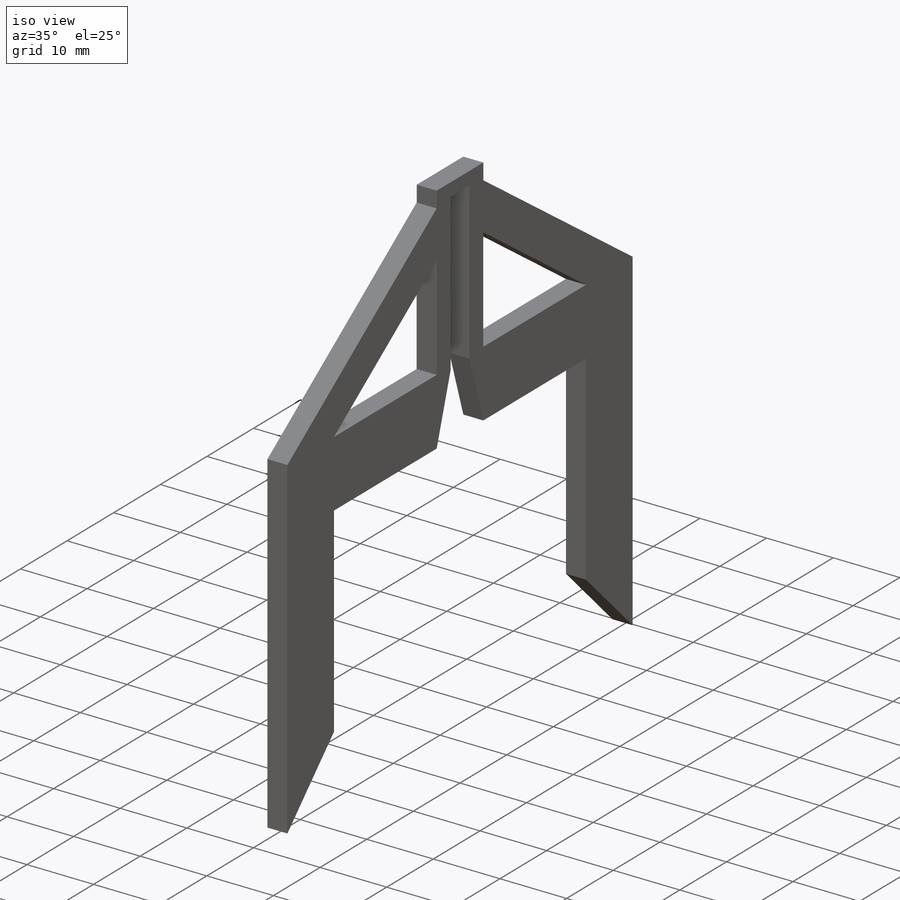
[diagram: iso view]
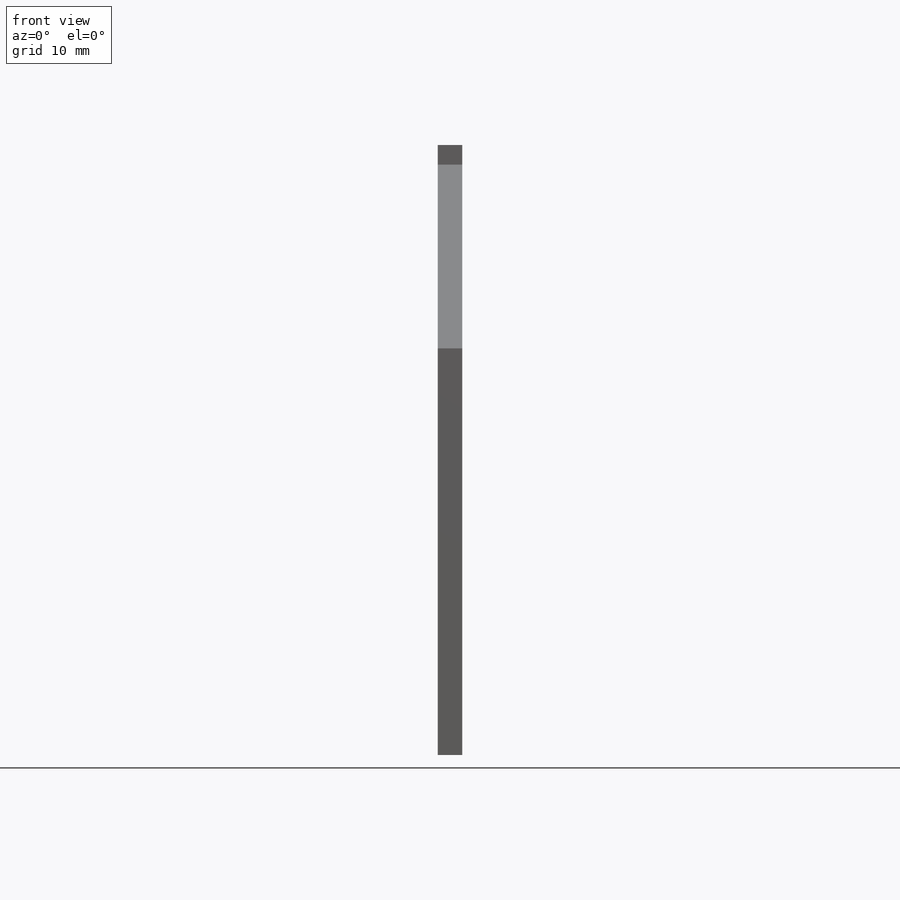
[diagram: front view]
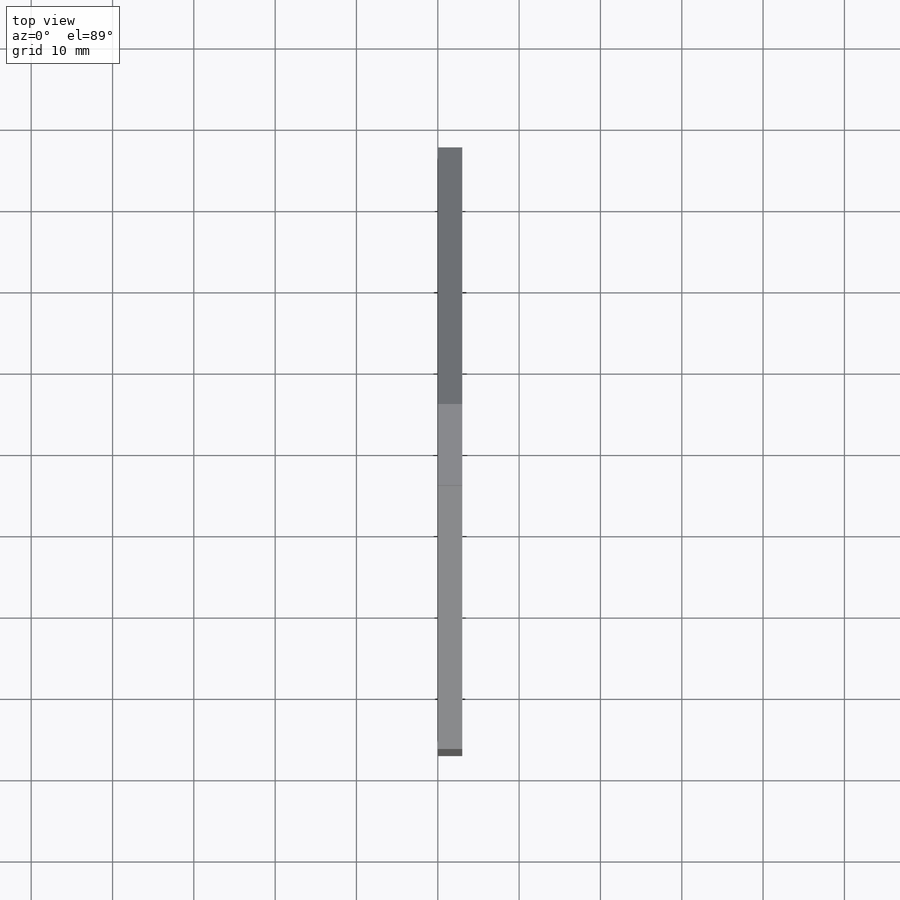
[diagram: top view]
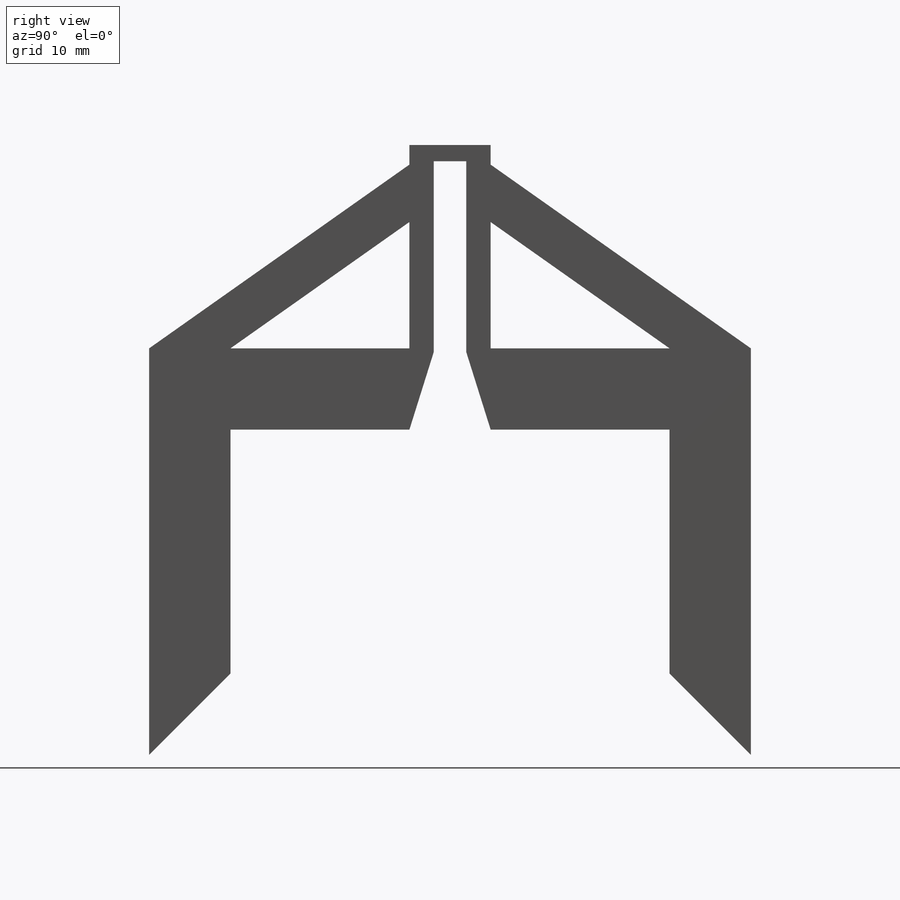
[diagram: right view]
SOLIDWORKS PART (.sldprt)
format: sldprt  version: not decoded by parser v0  size: 420,864 bytes
history: native  units: mm
features: sketch x10, cut_extrude x6, extrude x4, material x1 (+13 scaffold rows collapsed)
feature tree (34):
  scaffold x13  (default folders/planes/origin — collapsed)
  material  "Material <not specified>"
  sketch  "Sketch2"  dims[c1.D1=540.0mm c1.D2=540.0mm c2.D1=54.0mm c2.D2=10.0mm c2.D3=64.0mm c3.D2=74.0mm c3.D3=74.0mm]
  extrude  "Boss-Extrude1"  Depth=3mm
  sketch  "Sketch3"  dims[c1.D1=25.0mm c1.D2=15.0mm c2.D1=10.0mm c2.D2=25.0mm c2.D3=32.0mm c2.D4=25.0mm]
  extrude  "Boss-Extrude2"  [1 undecoded]
  sketch  "Sketch4"  dims[c1.D1=5.0mm c1.D2=10.0mm c1.D3=10.0mm c2.D2=5.0mm c2.D3=5.0mm]
  cut_extrude  "Cut-Extrude1"  [1 undecoded]
  sketch  "Sketch6"  dims[D8=10.0mm D1=~5.000966mm D2=~47.190929mm D3=~26.93023mm D4=~49.793744mm D5=~5.001714mm D6=~26.93023mm D7=10.0mm D9=~4.468185mm]
  extrude  "Boss-Extrude3"  [1 undecoded]
  sketch  "Sketch7"  dims[c1.D1=10.0mm c1.D2=10.0mm c1.D3=10.0mm c2.D2=5.0mm c2.D3=5.0mm c2.D4=~28.296322mm]
  cut_extrude  "Cut-Extrude2"  [1 undecoded]
  sketch  "Sketch8"  dims[c1.D1=10.0mm c1.D2=10.0mm c1.D3=10.0mm c1.D4=~168.00328mm c2.D2=5.0mm c2.D3=5.0mm c2.D5=~18.587295mm]
  cut_extrude  "Cut-Extrude3"  [1 undecoded]
  sketch  "Sketch9"  dims[c1.D1=10.0mm c1.D2=6.0mm c1.D3=4.0mm c2.D2=6.0mm c2.D3=4.0mm c2.D4=10.0mm c2.D5=3.0mm c2.D6=10.0mm c2.D7=~2.995061mm c2.D8=~74.319347mm]
  cut_extrude  "Cut-Extrude4"  [1 undecoded]
  sketch  "Sketch10"  dims[c1.D1=10.0mm c1.D2=10.0mm c1.D3=10.0mm c2.D1=~6.592811mm c2.D2=~6.741699mm c3.D1=~9.299541mm c3.D2=5.0mm c3.D3=5.0mm c3.D4=5.0mm c3.D5=5.0mm c4.D4=10.0mm c4.D5=10.0mm]
  extrude  "Boss-Extrude4"  [1 undecoded]
  sketch  "Sketch11"  dims[c1.D1=20.0mm c1.D2=20.0mm c1.D3=20.0mm c1.D4=20.0mm c2.D1=~4.235909mm c2.D2=~5.049261mm c2.D3=~1.620133mm c3.D2=10.0mm c4.D2=40.0mm c4.D3=~9.542313mm c4.D4=10.0mm c5.D3=30.0mm c5.D4=40.0mm c5.D5=~9.542753mm c5.D6=10.0mm c6.D5=~14.142136mm]
  cut_extrude  "Cut-Extrude6"  [1 undecoded]
  sketch  "Sketch12"  dims[c1.D1=~16.021104mm c1.D2=10.0mm c2.D1=28.4mm c2.D2=5.0mm c3.D1=28.4mm c3.D2=5.0mm c3.D3=0.0mm]
  cut_extrude  "Cut-Extrude7"  Depth=3mm
decode coverage: 12 of 20 modeling features carry decoded parameters
note: ~ marks probable driven/reference dimensions
note: 8 parameter values undecoded
summary: no parameter record found for 8 features
note: suppression state not decoded; provenance and decode notes live in map.json
